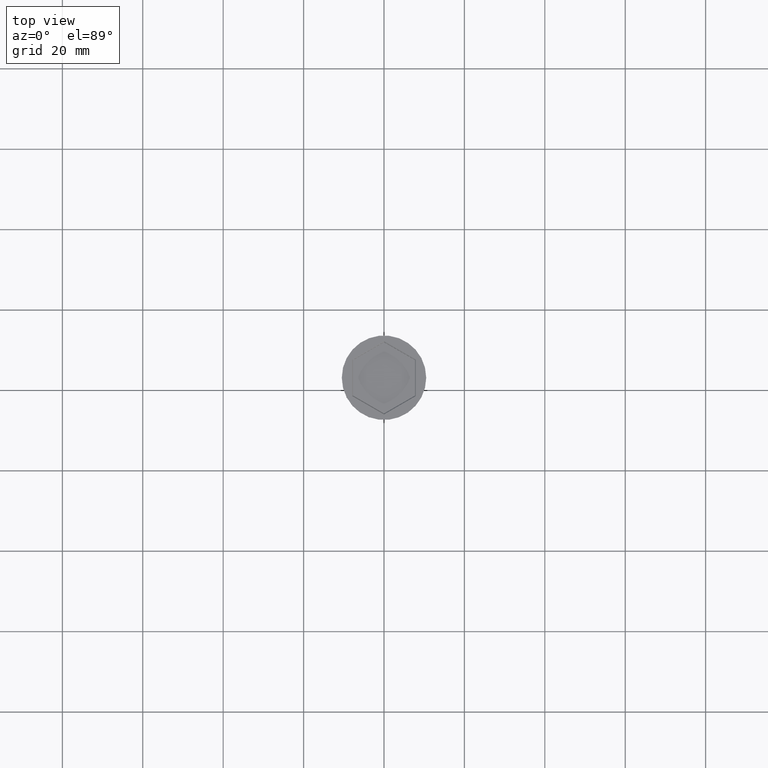
[diagram: clean part render]
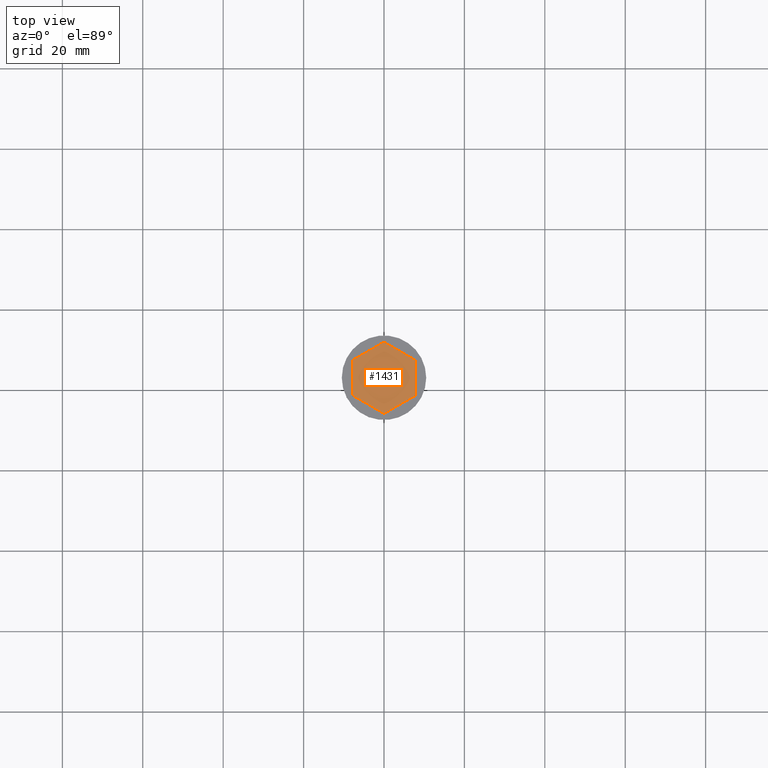
[diagram: same view with one face highlighted and labeled with its STEP entity id]
A machine part, top view. The second image highlights one B-rep face of the part: STEP entity #1431.
In plain terms, the highlighted planar face has unit normal (-0, 0, 1).
Its self-contained STEP definition (entity closure, byte-faithful):
#2 = DIRECTION ( 'NONE',  ( -9.755289602189348473E-17, -1.000000000000000000, 0.000000000000000000 ) ) ;
#14 = VERTEX_POINT ( 'NONE', #1129 ) ;
#18 = DIRECTION ( 'NONE',  ( -0.000000000000000000, 0.000000000000000000, 1.000000000000000000 ) ) ;
#32 = VECTOR ( 'NONE', #870, 1000.000000000000000 ) ;
#34 = LINE ( 'NONE', #847, #808 ) ;
#46 = LINE ( 'NONE', #989, #1275 ) ;
#95 = VERTEX_POINT ( 'NONE', #937 ) ;
#117 = ORIENTED_EDGE ( 'NONE', *, *, #792, .T. ) ;
#164 = VERTEX_POINT ( 'NONE', #852 ) ;
#199 = LINE ( 'NONE', #568, #1199 ) ;
#221 = VECTOR ( 'NONE', #795, 1000.000000000000000 ) ;
#222 = CARTESIAN_POINT ( 'NONE',  ( -7.699999999999999289, 4.445597072760116397, -2.000000000000000000 ) ) ;
#333 = VERTEX_POINT ( 'NONE', #1458 ) ;
#413 = EDGE_LOOP ( 'NONE', ( #672, #714, #1095, #1227, #785, #117 ) ) ;
#453 = EDGE_CURVE ( 'NONE', #333, #14, #987, .T. ) ;
#466 = LINE ( 'NONE', #222, #956 ) ;
#519 = FACE_OUTER_BOUND ( 'NONE', #413, .T. ) ;
#535 = VERTEX_POINT ( 'NONE', #797 ) ;
#568 = CARTESIAN_POINT ( 'NONE',  ( 7.700000000000000178, 4.445597072760118174, -2.000000000000000000 ) ) ;
#612 = CARTESIAN_POINT ( 'NONE',  ( 0.000000000000000000, 0.000000000000000000, -2.000000000000000000 ) ) ;
#648 = CARTESIAN_POINT ( 'NONE',  ( 7.699999999999999289, -4.445597072760119950, -2.000000000000000000 ) ) ;
#672 = ORIENTED_EDGE ( 'NONE', *, *, #1215, .T. ) ;
#714 = ORIENTED_EDGE ( 'NONE', *, *, #453, .T. ) ;
#785 = ORIENTED_EDGE ( 'NONE', *, *, #1380, .T. ) ;
#792 = EDGE_CURVE ( 'NONE', #1491, #164, #1374, .T. ) ;
#795 = DIRECTION ( 'NONE',  ( 9.755289602189344775E-17, 1.000000000000000000, 0.000000000000000000 ) ) ;
#797 = CARTESIAN_POINT ( 'NONE',  ( -7.700000000000000178, -4.445597072760118174, -2.000000000000000000 ) ) ;
#808 = VECTOR ( 'NONE', #1115, 999.9999999999998863 ) ;
#847 = CARTESIAN_POINT ( 'NONE',  ( -7.700000000000000178, -4.445597072760118174, -2.000000000000000000 ) ) ;
#852 = CARTESIAN_POINT ( 'NONE',  ( 7.700000000000000178, 4.445597072760118174, -2.000000000000000000 ) ) ;
#870 = DIRECTION ( 'NONE',  ( -0.8660254037844385966, -0.5000000000000001110, 0.000000000000000000 ) ) ;
#932 = EDGE_CURVE ( 'NONE', #14, #535, #466, .T. ) ;
#937 = CARTESIAN_POINT ( 'NONE',  ( -4.336808689942017736E-16, -8.891194145520236347, -2.000000000000000000 ) ) ;
#956 = VECTOR ( 'NONE', #2, 1000.000000000000000 ) ;
#987 = LINE ( 'NONE', #1444, #32 ) ;
#989 = CARTESIAN_POINT ( 'NONE',  ( -4.336808689942017736E-16, -8.891194145520236347, -2.000000000000000000 ) ) ;
#1095 = ORIENTED_EDGE ( 'NONE', *, *, #932, .T. ) ;
#1100 = DIRECTION ( 'NONE',  ( 0.8660254037844387076, 0.4999999999999997780, 0.000000000000000000 ) ) ;
#1115 = DIRECTION ( 'NONE',  ( 0.8660254037844387076, -0.4999999999999999445, 0.000000000000000000 ) ) ;
#1128 = AXIS2_PLACEMENT_3D ( 'NONE', #612, #18, #1144 ) ;
#1129 = CARTESIAN_POINT ( 'NONE',  ( -7.699999999999999289, 4.445597072760116397, -2.000000000000000000 ) ) ;
#1144 = DIRECTION ( 'NONE',  ( 1.000000000000000000, 0.000000000000000000, 0.000000000000000000 ) ) ;
#1199 = VECTOR ( 'NONE', #1248, 1000.000000000000114 ) ;
#1215 = EDGE_CURVE ( 'NONE', #164, #333, #199, .T. ) ;
#1227 = ORIENTED_EDGE ( 'NONE', *, *, #1391, .T. ) ;
#1248 = DIRECTION ( 'NONE',  ( -0.8660254037844385966, 0.4999999999999999445, 0.000000000000000000 ) ) ;
#1275 = VECTOR ( 'NONE', #1100, 1000.000000000000114 ) ;
#1315 = PLANE ( 'NONE',  #1128 ) ;
#1374 = LINE ( 'NONE', #1496, #221 ) ;
#1380 = EDGE_CURVE ( 'NONE', #95, #1491, #46, .T. ) ;
#1391 = EDGE_CURVE ( 'NONE', #535, #95, #34, .T. ) ;
#1431 = ADVANCED_FACE ( 'NONE', ( #519 ), #1315, .T. ) ;
#1444 = CARTESIAN_POINT ( 'NONE',  ( 8.673617379884035472E-16, 8.891194145520236347, -2.000000000000000000 ) ) ;
#1458 = CARTESIAN_POINT ( 'NONE',  ( 8.673617379884035472E-16, 8.891194145520236347, -2.000000000000000000 ) ) ;
#1491 = VERTEX_POINT ( 'NONE', #648 ) ;
#1496 = CARTESIAN_POINT ( 'NONE',  ( 7.699999999999999289, -4.445597072760119950, -2.000000000000000000 ) ) ;